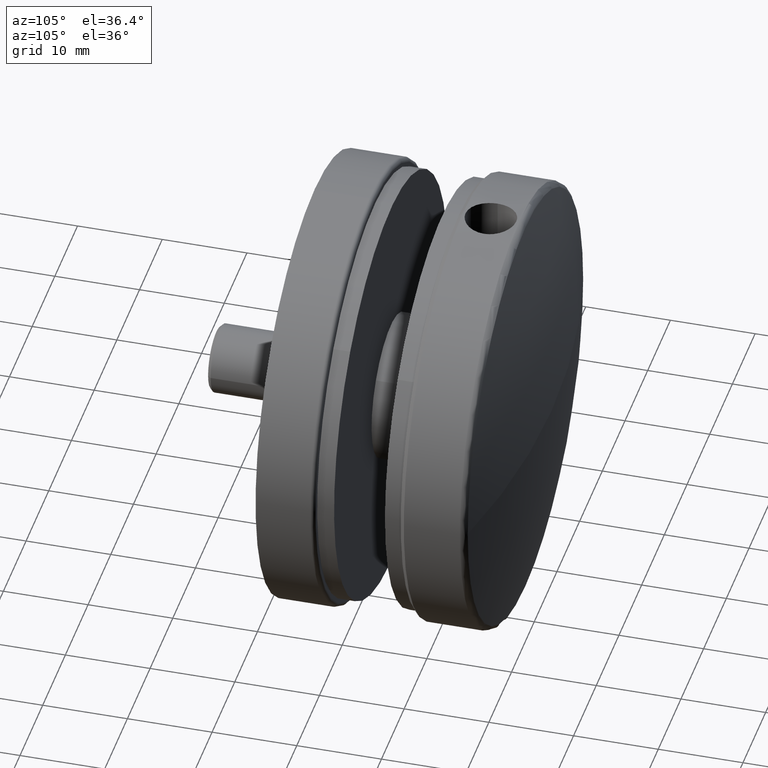
[diagram: clean part render]
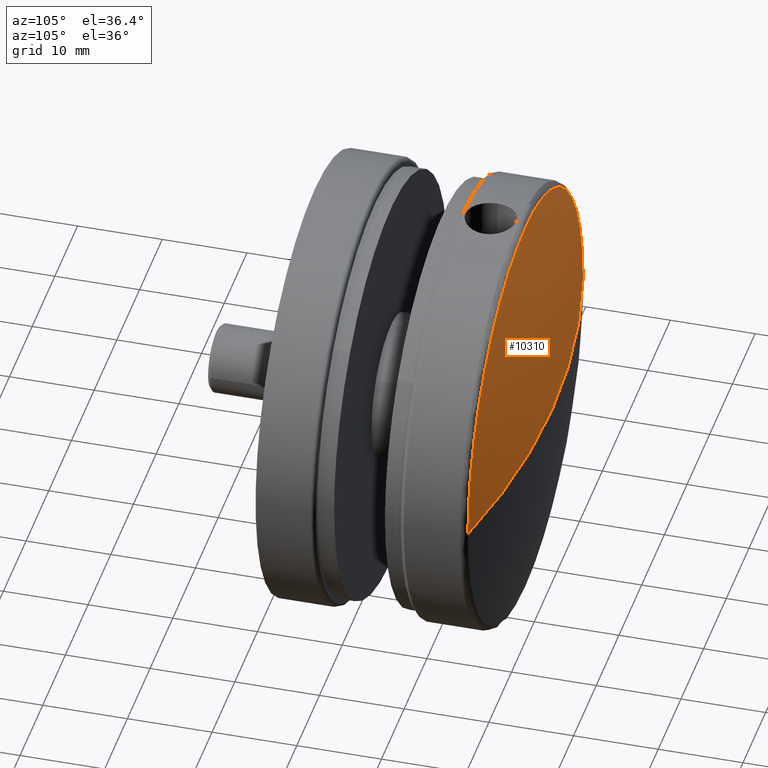
[diagram: same view with one face highlighted and labeled with its STEP entity id]
A machine part, auxiliary view. The second image highlights one B-rep face of the part: STEP entity #10310.
In plain terms, the highlighted spherical surface has radius 105.67 mm.
Its self-contained STEP definition (entity closure, byte-faithful):
#720 = AXIS2_PLACEMENT_3D ( 'NONE', #1399, #9320, #12899 ) ;
#1399 = CARTESIAN_POINT ( 'NONE',  ( 26.00000000000000400, -94.67000000000000200, 0.0000000000000000000 ) ) ;
#1579 = ORIENTED_EDGE ( 'NONE', *, *, #6237, .T. ) ;
#2227 = DIRECTION ( 'NONE',  ( -0.0000000000000000000, 0.0000000000000000000, 1.000000000000000000 ) ) ;
#2439 = CARTESIAN_POINT ( 'NONE',  ( 26.00000000000000400, -94.67000000000000200, 0.0000000000000000000 ) ) ;
#2623 = EDGE_CURVE ( 'NONE', #13291, #7315, #10962, .T. ) ;
#2790 = EDGE_LOOP ( 'NONE', ( #9624, #1579, #14399, #14716 ) ) ;
#2859 = CARTESIAN_POINT ( 'NONE',  ( 26.00000000000000400, -94.67000000000000200, 0.0000000000000000000 ) ) ;
#3562 = AXIS2_PLACEMENT_3D ( 'NONE', #2859, #5154, #5104 ) ;
#3691 = DIRECTION ( 'NONE',  ( 0.0000000000000000000, 1.000000000000000000, 0.0000000000000000000 ) ) ;
#4302 = FACE_OUTER_BOUND ( 'NONE', #2790, .T. ) ;
#4780 = CIRCLE ( 'NONE', #13012, 25.39223800896348100 ) ;
#4895 = VERTEX_POINT ( 'NONE', #14396 ) ;
#5104 = DIRECTION ( 'NONE',  ( -1.000000000000000000, 0.0000000000000000000, 0.0000000000000000000 ) ) ;
#5154 = DIRECTION ( 'NONE',  ( -0.0000000000000000000, -0.0000000000000000000, -1.000000000000000000 ) ) ;
#5174 = DIRECTION ( 'NONE',  ( 0.0000000000000000000, 1.000000000000000000, 0.0000000000000000000 ) ) ;
#6157 = CARTESIAN_POINT ( 'NONE',  ( 26.00000000000000400, 7.903793675071546500, 25.39223800896348100 ) ) ;
#6237 = EDGE_CURVE ( 'NONE', #13291, #4895, #8232, .T. ) ;
#6326 = CARTESIAN_POINT ( 'NONE',  ( 26.00000000000000400, 7.903793675071546500, 0.0000000000000000000 ) ) ;
#7021 = VERTEX_POINT ( 'NONE', #6157 ) ;
#7315 = VERTEX_POINT ( 'NONE', #13552 ) ;
#7410 = AXIS2_PLACEMENT_3D ( 'NONE', #2439, #2227, #13736 ) ;
#7443 = DIRECTION ( 'NONE',  ( 0.0000000000000000000, 0.0000000000000000000, -1.000000000000000000 ) ) ;
#7474 = SPHERICAL_SURFACE ( 'NONE', #3562, 105.6699999999999900 ) ;
#8131 = CARTESIAN_POINT ( 'NONE',  ( 26.00000000000000400, 7.903793675071546500, 0.0000000000000000000 ) ) ;
#8232 = CIRCLE ( 'NONE', #7410, 105.6699999999999900 ) ;
#9320 = DIRECTION ( 'NONE',  ( -1.224646799147353200E-016, 0.0000000000000000000, -1.000000000000000000 ) ) ;
#9427 = AXIS2_PLACEMENT_3D ( 'NONE', #8131, #5174, #11174 ) ;
#9624 = ORIENTED_EDGE ( 'NONE', *, *, #2623, .F. ) ;
#10310 = ADVANCED_FACE ( 'NONE', ( #4302 ), #7474, .T. ) ;
#10962 = CIRCLE ( 'NONE', #720, 105.6699999999999900 ) ;
#11174 = DIRECTION ( 'NONE',  ( 0.0000000000000000000, 0.0000000000000000000, -1.000000000000000000 ) ) ;
#11182 = CIRCLE ( 'NONE', #9427, 25.39223800896348100 ) ;
#12886 = EDGE_CURVE ( 'NONE', #4895, #7021, #11182, .T. ) ;
#12899 = DIRECTION ( 'NONE',  ( -1.000000000000000000, 0.0000000000000000000, 1.224646799147353200E-016 ) ) ;
#13012 = AXIS2_PLACEMENT_3D ( 'NONE', #6326, #3691, #7443 ) ;
#13021 = CARTESIAN_POINT ( 'NONE',  ( 25.99999999999999600, 10.99999999999998200, 0.0000000000000000000 ) ) ;
#13291 = VERTEX_POINT ( 'NONE', #13021 ) ;
#13552 = CARTESIAN_POINT ( 'NONE',  ( 51.39223800896347400, 7.903793675071553600, -3.109652300086488700E-015 ) ) ;
#13736 = DIRECTION ( 'NONE',  ( 1.000000000000000000, 0.0000000000000000000, 0.0000000000000000000 ) ) ;
#14265 = EDGE_CURVE ( 'NONE', #7021, #7315, #4780, .T. ) ;
#14396 = CARTESIAN_POINT ( 'NONE',  ( 0.6077619910365237300, 7.903793675071553600, 0.0000000000000000000 ) ) ;
#14399 = ORIENTED_EDGE ( 'NONE', *, *, #12886, .T. ) ;
#14716 = ORIENTED_EDGE ( 'NONE', *, *, #14265, .T. ) ;